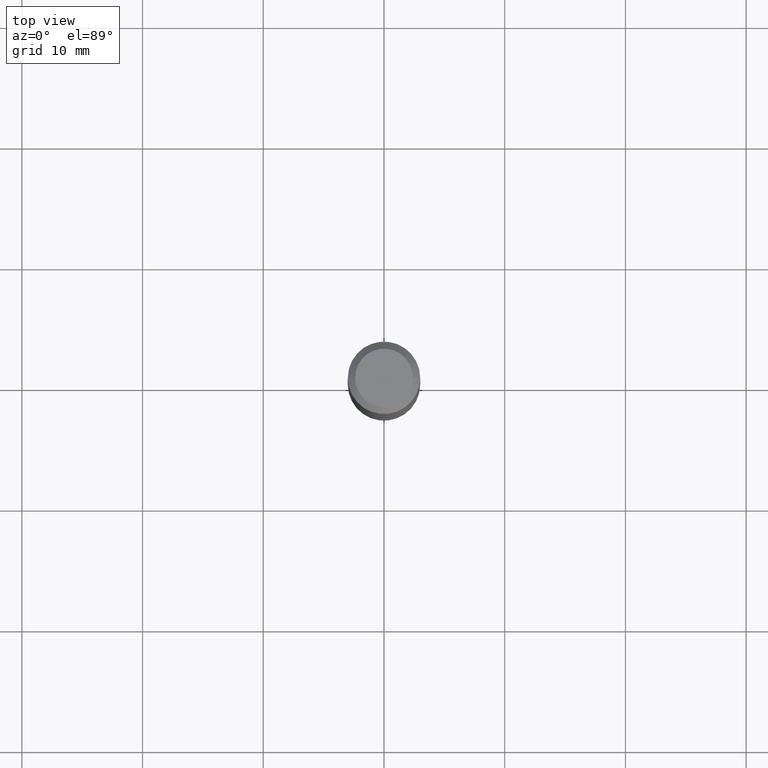
[diagram: clean part render]
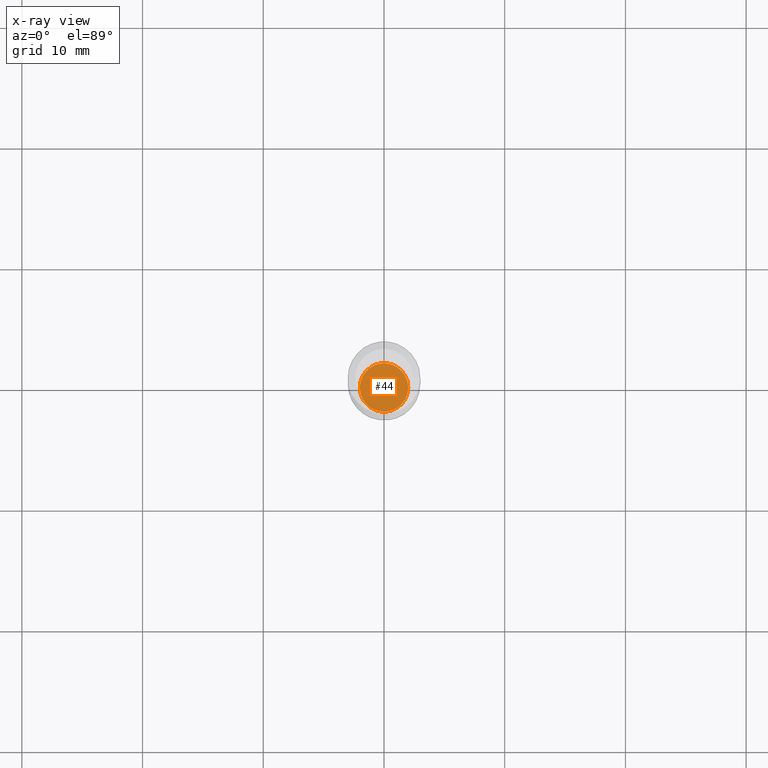
[diagram: x-ray — body ghosted, one internal face saturated and labeled with its STEP entity id]
A machine part, top view, then the same camera in x-ray: the body is ghosted and one INTERNAL B-rep face — a face not visible from any outside direction — is saturated and labeled: STEP entity #44.
In plain terms, the highlighted planar face has unit normal (-0, 0, 1).
Its self-contained STEP definition (entity closure, byte-faithful):
#1 = CARTESIAN_POINT ( 'NONE',  ( -0.07900000000000000078, -5.902943747380684142E-15, -1.852200000000000069 ) ) ;
#3 = DIRECTION ( 'NONE',  ( -2.445468806185136597E-29, 3.491481338843145583E-15, 1.000000000000000000 ) ) ;
#6 = DIRECTION ( 'NONE',  ( -2.445468806185136597E-29, 3.491481338843145583E-15, 1.000000000000000000 ) ) ;
#15 = AXIS2_PLACEMENT_3D ( 'NONE', #123, #3, #165 ) ;
#21 = AXIS2_PLACEMENT_3D ( 'NONE', #399, #42, #402 ) ;
#37 = ORIENTED_EDGE ( 'NONE', *, *, #98, .F. ) ;
#39 = VERTEX_POINT ( 'NONE', #1 ) ;
#42 = DIRECTION ( 'NONE',  ( -2.438088387897960049E-29, 3.491481338843145188E-15, 1.000000000000000000 ) ) ;
#44 = ADVANCED_FACE ( 'NONE', ( #167 ), #287, .F. ) ;
#65 = AXIS2_PLACEMENT_3D ( 'NONE', #364, #6, #335 ) ;
#73 = VERTEX_POINT ( 'NONE', #441 ) ;
#98 = EDGE_CURVE ( 'NONE', #73, #39, #439, .T. ) ;
#120 = EDGE_CURVE ( 'NONE', #39, #73, #218, .T. ) ;
#123 = CARTESIAN_POINT ( 'NONE',  ( 4.529497322816109909E-29, -6.466921735805274989E-15, -1.852200000000000069 ) ) ;
#138 = EDGE_LOOP ( 'NONE', ( #37, #477 ) ) ;
#165 = DIRECTION ( 'NONE',  ( 1.000000000000000000, -6.982962677686271444E-15, 0.000000000000000000 ) ) ;
#167 = FACE_OUTER_BOUND ( 'NONE', #138, .T. ) ;
#218 = CIRCLE ( 'NONE', #15, 0.07900000000000000078 ) ;
#287 = PLANE ( 'NONE',  #21 ) ;
#335 = DIRECTION ( 'NONE',  ( 1.000000000000000000, -6.982962677686271444E-15, 0.000000000000000000 ) ) ;
#364 = CARTESIAN_POINT ( 'NONE',  ( 4.529497322816109909E-29, -6.466921735805274989E-15, -1.852200000000000069 ) ) ;
#399 = CARTESIAN_POINT ( 'NONE',  ( 4.529497322816109909E-29, -6.466921735805274989E-15, -1.852200000000000069 ) ) ;
#402 = DIRECTION ( 'NONE',  ( 1.000000000000000000, -6.982962677686265922E-15, 4.876176775795935793E-29 ) ) ;
#439 = CIRCLE ( 'NONE', #65, 0.07900000000000000078 ) ;
#441 = CARTESIAN_POINT ( 'NONE',  ( 0.07900000000000000078, -7.018575787342489838E-15, -1.852200000000000069 ) ) ;
#477 = ORIENTED_EDGE ( 'NONE', *, *, #120, .F. ) ;